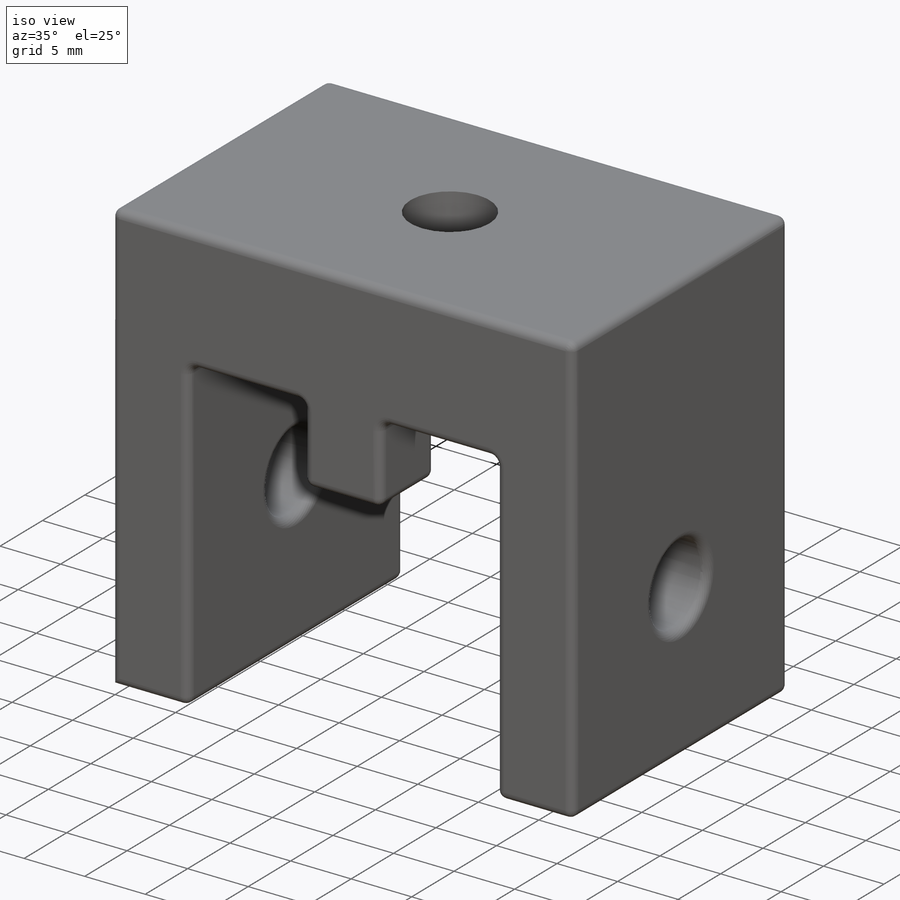
[diagram: iso view]
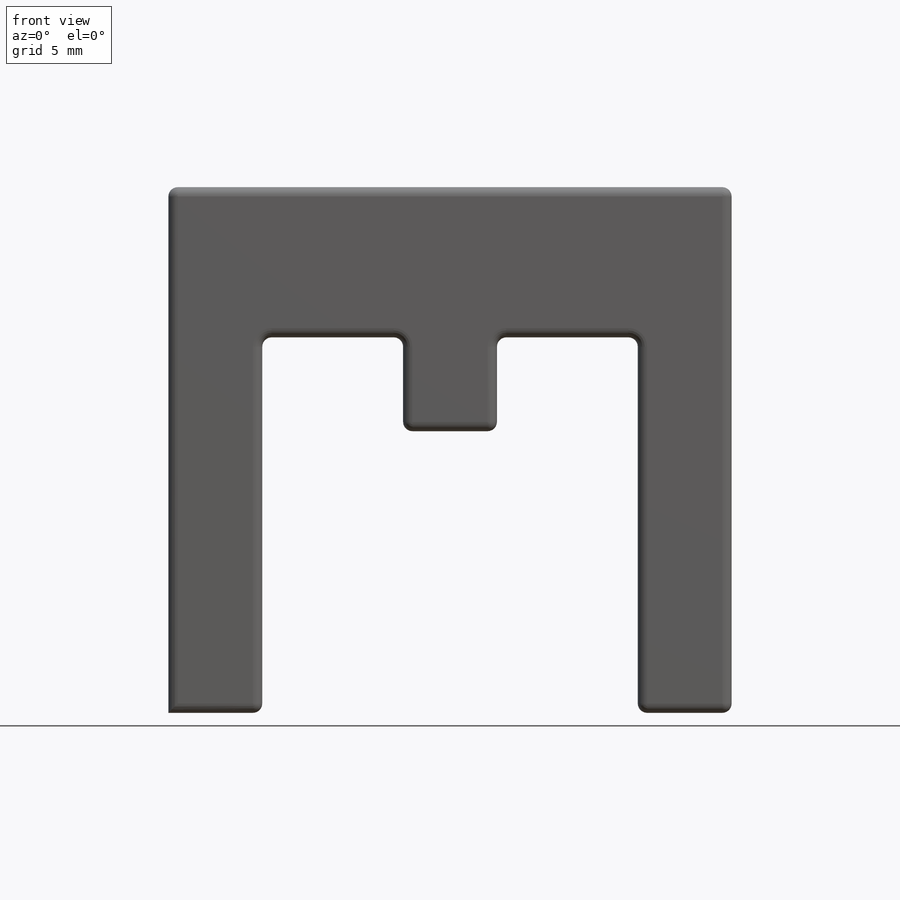
[diagram: front view]
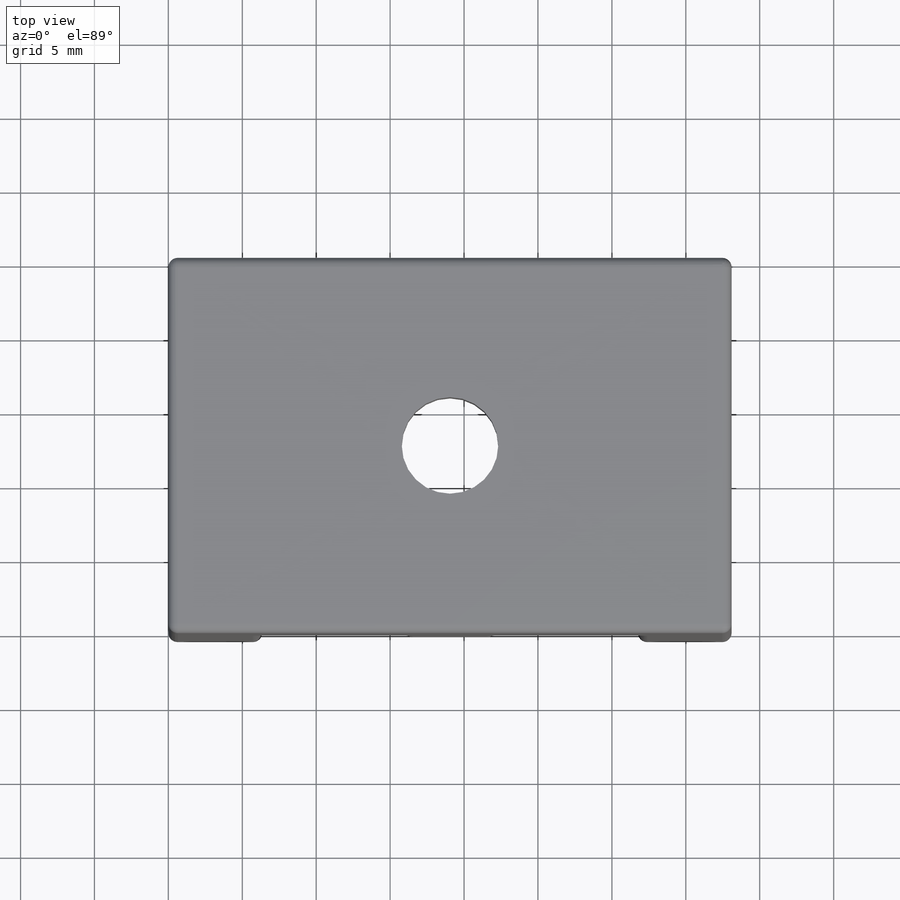
[diagram: top view]
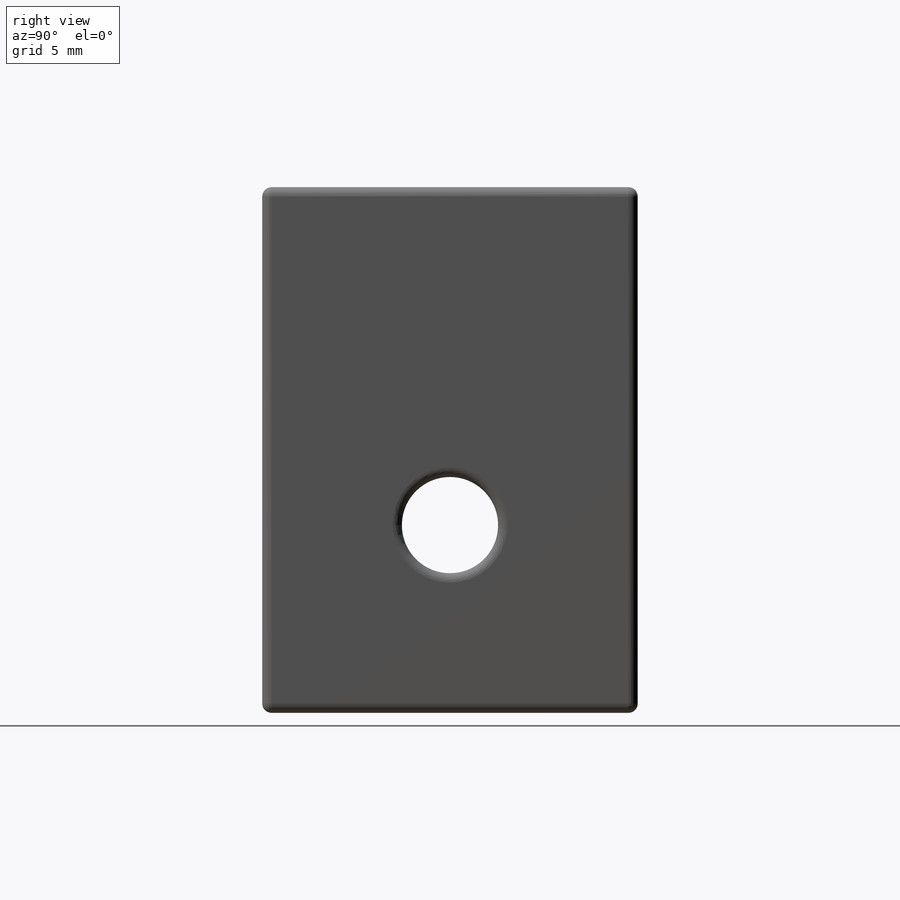
[diagram: right view]
SOLIDWORKS PART (.sldprt)
format: sldprt  version: not decoded by parser v0  size: 508,416 bytes
history: native  units: mm
features: sketch x9, extrude x3, hole x3, plane x2, material x1, mirror x1, boolean_combine x1, fillet x1 (+15 scaffold rows collapsed)
feature tree (36):
  scaffold x15  (default folders/planes/origin — collapsed)
  material  "Material <not specified>"
  sketch  "Sketch1"  dims[D1=6.35mm D2=6.35mm D3=25.4mm D4=38.1mm D5=35.56mm D6=25.4mm]
  extrude  "Boss-Extrude1"  Depth=25.4mm
  sketch  "Sketch2"  dims[D1=6.35mm D2=6.35mm]
  extrude  "Boss-Extrude2"  Depth=6.35mm
  plane  "Plane1"  Offset=12.7mm
  mirror  "Mirror1"
  hole  "#97 (0.0059) Diameter Hole3"  Diameter=6.5278mm Depth=35.56mm
  sketch  "Sketch4"  dims[D1=12.7mm D2=19.05mm]
  sketch  "Sketch3"  dims[hole-wizard template sketch: 60 standard entries collapsed; hole parameters kept: c18.Thru Hole Depth=35.56mm]
  hole  "#97 (0.0059) Diameter Hole1"  Diameter=6.5278mm Depth=6.35mm
  sketch  "Sketch6"  dims[D1=12.7mm D2=12.7mm]
  sketch  "Sketch5"  dims[hole-wizard template sketch: 61 standard entries collapsed; hole parameters above]
  hole  "#97 (0.0059) Diameter Hole2"  Diameter=6.5278mm Depth=6.35mm
  sketch  "Sketch8"  dims[D1=12.7mm D2=12.7mm]
  sketch  "Sketch7"  dims[hole-wizard template sketch: 61 standard entries collapsed; hole parameters above]
  plane  "Plane2"  Offset=25.4mm
  sketch  "Sketch9"  dims[c1.D1=10.922mm c1.D2=10.922mm c2.D1=19.05mm c2.D2=5.461mm]
  extrude  "Boss-Extrude3"  Depth=5.08mm
  boolean_combine  "Combine1"
  fillet  "Fillet1"  Radius=0.635mm
decode coverage: 16 of 18 modeling features carry decoded parameters
note: ~ marks probable driven/reference dimensions
note: suppression state not decoded; provenance and decode notes live in map.json
